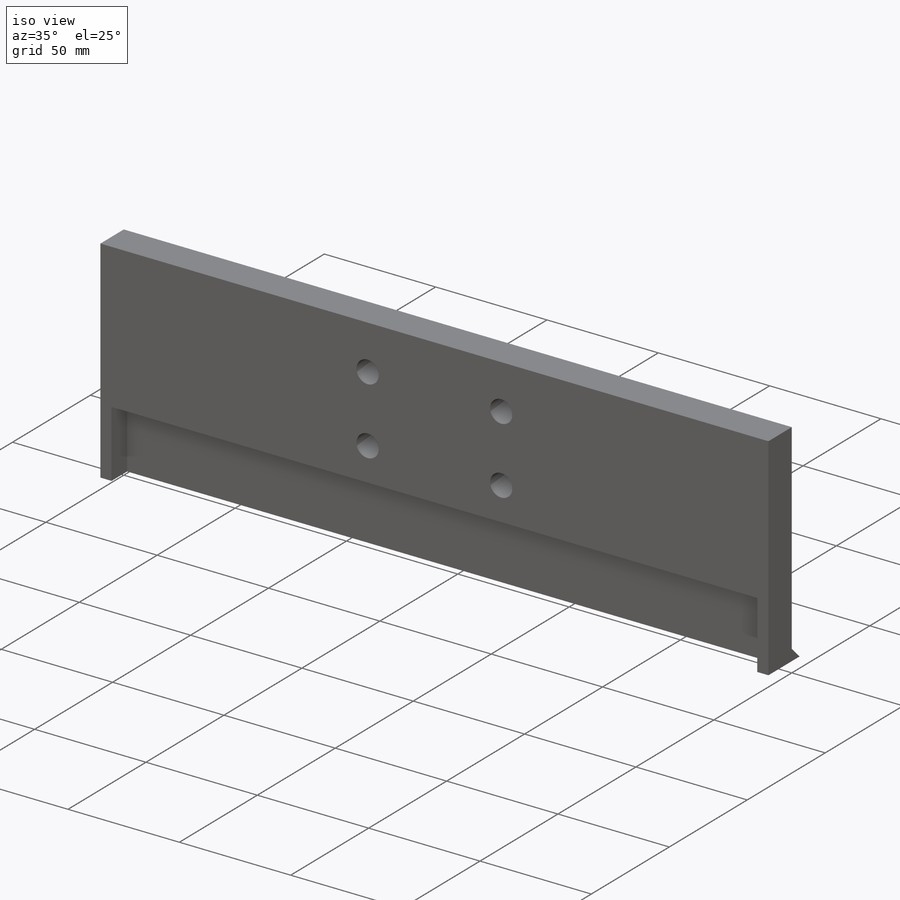
[diagram: iso view]
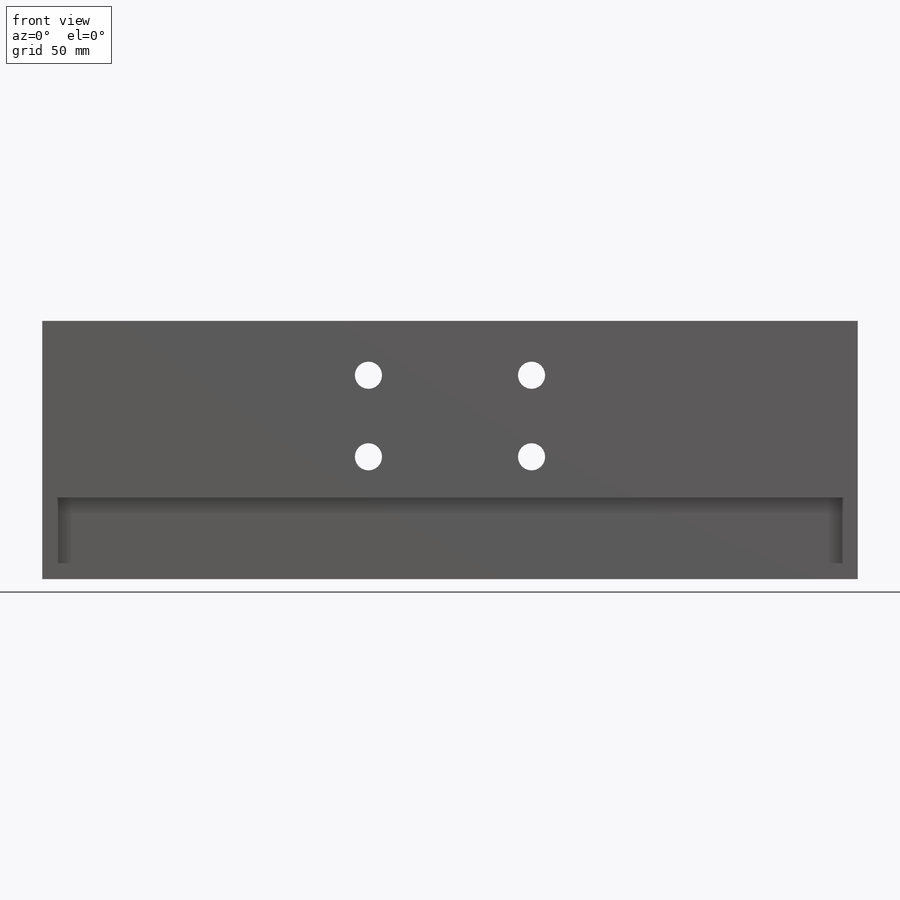
[diagram: front view]
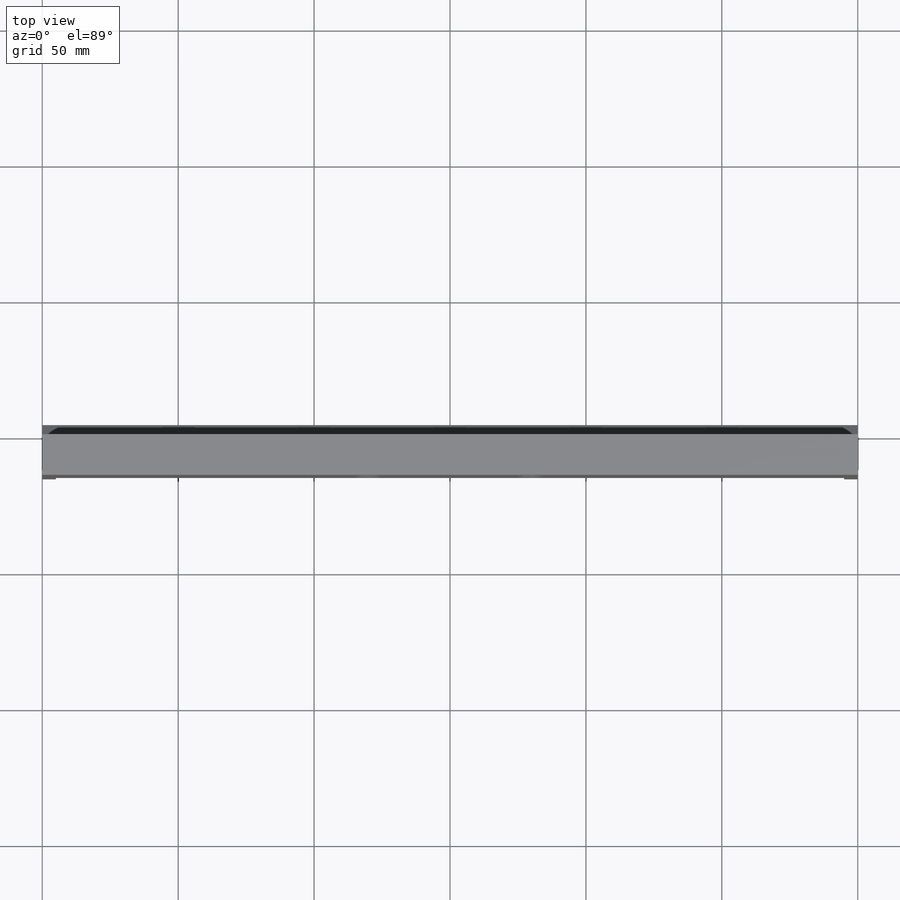
[diagram: top view]
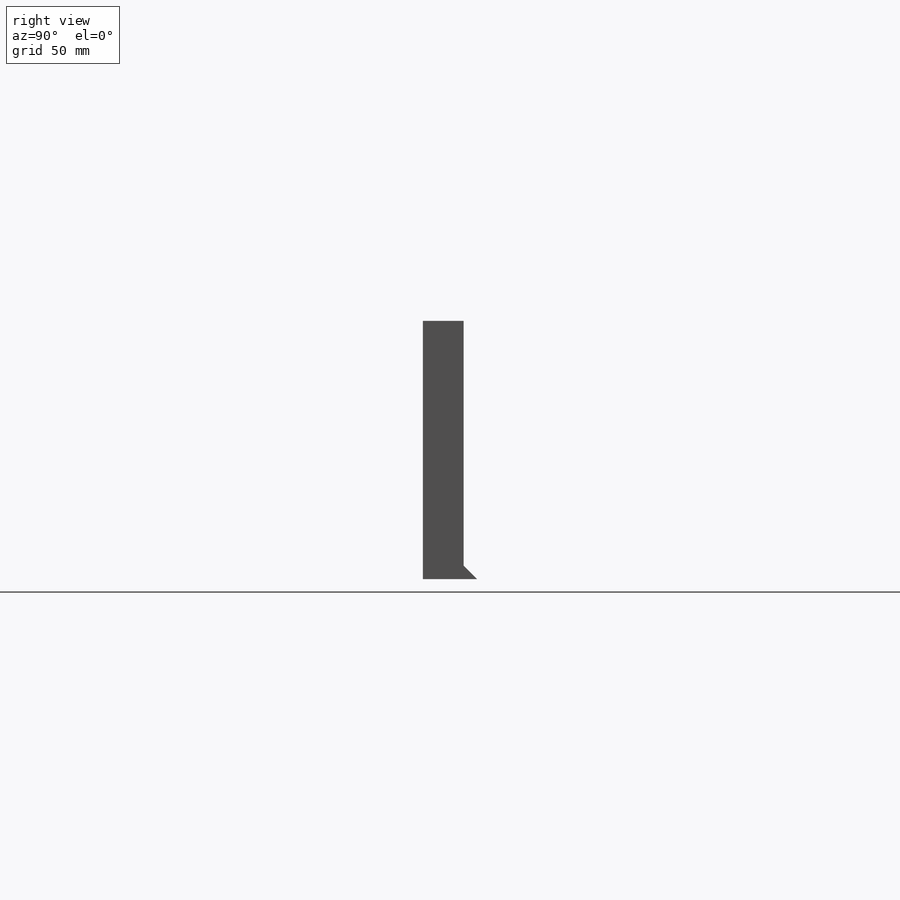
[diagram: right view]
SOLIDWORKS PART (.sldprt)
format: sldprt  version: not decoded by parser v0  size: 201,728 bytes
history: native  units: mm
features: sketch x6, plane x3, extrude x3, cut_extrude x2, material x1 (+9 scaffold rows collapsed)
feature tree (24):
  scaffold x9  (default folders/planes/origin — collapsed)
  material  "Matériau <non spécifié>"
  plane  "Plan de face"
  plane  "Plan de dessus"
  plane  "Plan de droite"
  sketch  "Esquisse1"  dims[D1=300.0mm D2=95.0mm]
  extrude  "Boss.-Extru.1"  Depth=5mm
  sketch  "Esquisse3"  dims[D1=5.0mm D2=5.0mm]
  extrude  "Boss.-Extru.2"  [1 undecoded]
  sketch  "Esquisse4"  dims[c1.D3=10.0mm c1.D4=10.0mm c1.D5=10.0mm c1.D6=10.0mm c1.D7=10.0mm c1.D8=10.0mm c1.D9=10.0mm c1.D10=10.0mm c1.D11=10.0mm c1.D12=10.0mm c1.D13=10.0mm c1.D14=10.0mm c1.D1=45.0mm c1.D2=45.0mm c2.D7=20.0mm c2.D8=30.0mm c2.D9=20.0mm c2.D10=30.0mm c2.D11=30.0mm c2.D12=30.0mm c2.D13=30.0mm c2.D14=30.0mm c2.D15=90.0mm]
  sketch  "Esquisse5"  dims[D1=30.0mm]
  extrude  "Boss.-Extru.3"  Depth=10mm
  sketch  "Esquisse6"
  cut_extrude  "Enlèv. mat.-Extru.2"  [1 undecoded]
  sketch  "Esquisse7"  dims[D1=5.0mm D2=5.0mm D3=5.0mm]
  cut_extrude  "Enlèv. mat.-Extru.3"  Depth=30mm
decode coverage: 8 of 11 modeling features carry decoded parameters
note: 2 parameter values undecoded
note: suppression state not decoded; provenance and decode notes live in map.json
